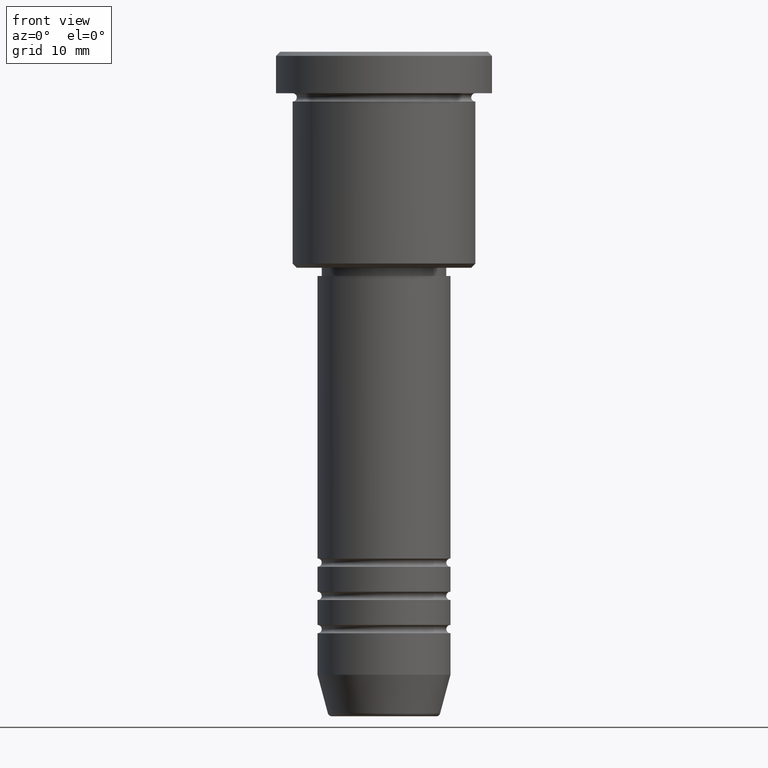
[diagram: clean part render]
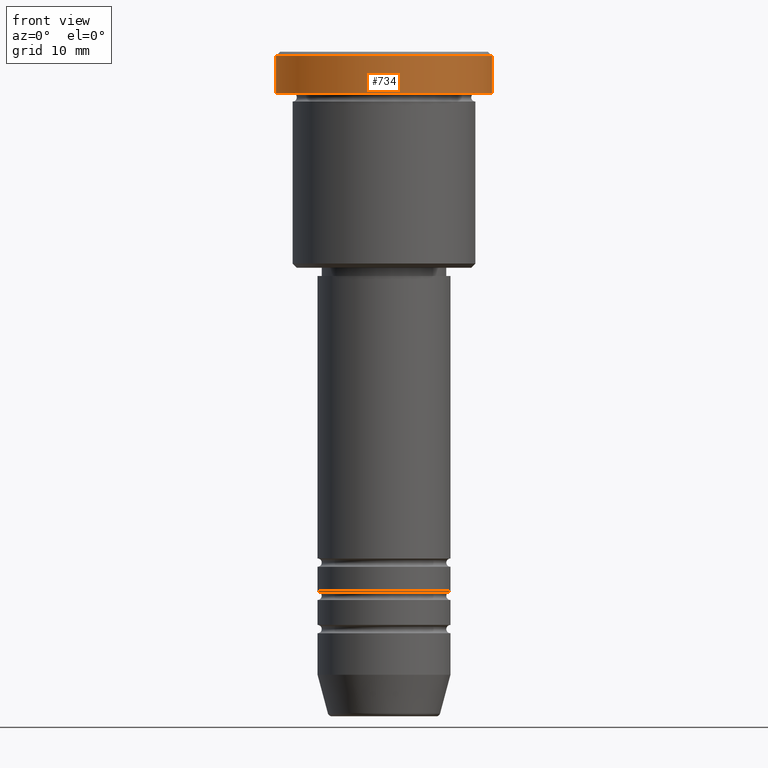
[diagram: same view with one face highlighted and labeled with its STEP entity id]
A machine part, front view. The second image highlights one B-rep face of the part: STEP entity #734.
In plain terms, the highlighted cylindrical surface (partial cylindrical patch) has radius 13 mm, axis along (-0, -0, 1).
Its self-contained STEP definition (entity closure, byte-faithful):
#24 = ORIENTED_EDGE ( 'NONE', *, *, #1110, .T. ) ;
#85 = DIRECTION ( 'NONE',  ( 1.000000000000000000, 0.000000000000000000, 0.000000000000000000 ) ) ;
#86 = VECTOR ( 'NONE', #1178, 1000.000000000000000 ) ;
#102 = AXIS2_PLACEMENT_3D ( 'NONE', #826, #358, #85 ) ;
#150 = CARTESIAN_POINT ( 'NONE',  ( -13.00000000000000000, 1.592040838891559095E-15, -5.000000000000000000 ) ) ;
#175 = EDGE_LOOP ( 'NONE', ( #380, #24, #631, #447 ) ) ;
#241 = CARTESIAN_POINT ( 'NONE',  ( 13.00000000000000000, 0.000000000000000000, -5.000000000000000000 ) ) ;
#276 = DIRECTION ( 'NONE',  ( 0.000000000000000000, 0.000000000000000000, -1.000000000000000000 ) ) ;
#300 = CYLINDRICAL_SURFACE ( 'NONE', #1001, 13.00000000000000000 ) ;
#358 = DIRECTION ( 'NONE',  ( -0.000000000000000000, -0.000000000000000000, 1.000000000000000000 ) ) ;
#380 = ORIENTED_EDGE ( 'NONE', *, *, #1094, .F. ) ;
#388 = VECTOR ( 'NONE', #732, 1000.000000000000000 ) ;
#395 = VERTEX_POINT ( 'NONE', #241 ) ;
#399 = VERTEX_POINT ( 'NONE', #150 ) ;
#411 = CARTESIAN_POINT ( 'NONE',  ( -13.00000000000000000, 1.592040838891559095E-15, -0.4999999999999796274 ) ) ;
#418 = CARTESIAN_POINT ( 'NONE',  ( 13.00000000000000000, 0.000000000000000000, -0.4999999999999796274 ) ) ;
#447 = ORIENTED_EDGE ( 'NONE', *, *, #1158, .T. ) ;
#490 = DIRECTION ( 'NONE',  ( -0.000000000000000000, -0.000000000000000000, 1.000000000000000000 ) ) ;
#526 = VERTEX_POINT ( 'NONE', #411 ) ;
#581 = VERTEX_POINT ( 'NONE', #418 ) ;
#624 = CIRCLE ( 'NONE', #102, 13.00000000000000000 ) ;
#631 = ORIENTED_EDGE ( 'NONE', *, *, #1129, .T. ) ;
#637 = CARTESIAN_POINT ( 'NONE',  ( 13.00000000000000000, 0.000000000000000000, 0.000000000000000000 ) ) ;
#649 = CARTESIAN_POINT ( 'NONE',  ( -13.00000000000000000, 1.592040838891559095E-15, 0.000000000000000000 ) ) ;
#675 = FACE_OUTER_BOUND ( 'NONE', #175, .T. ) ;
#705 = AXIS2_PLACEMENT_3D ( 'NONE', #993, #276, #1083 ) ;
#732 = DIRECTION ( 'NONE',  ( -0.000000000000000000, -0.000000000000000000, 1.000000000000000000 ) ) ;
#734 = ADVANCED_FACE ( 'NONE', ( #675 ), #300, .T. ) ;
#736 = LINE ( 'NONE', #637, #388 ) ;
#826 = CARTESIAN_POINT ( 'NONE',  ( 0.000000000000000000, 0.000000000000000000, -5.000000000000000000 ) ) ;
#929 = LINE ( 'NONE', #649, #86 ) ;
#993 = CARTESIAN_POINT ( 'NONE',  ( 0.000000000000000000, 0.000000000000000000, -0.4999999999999796274 ) ) ;
#1001 = AXIS2_PLACEMENT_3D ( 'NONE', #1120, #490, #1032 ) ;
#1032 = DIRECTION ( 'NONE',  ( 1.000000000000000000, 0.000000000000000000, 0.000000000000000000 ) ) ;
#1083 = DIRECTION ( 'NONE',  ( 1.000000000000000000, 0.000000000000000000, 0.000000000000000000 ) ) ;
#1090 = CIRCLE ( 'NONE', #705, 13.00000000000000000 ) ;
#1094 = EDGE_CURVE ( 'NONE', #399, #526, #929, .T. ) ;
#1110 = EDGE_CURVE ( 'NONE', #399, #395, #624, .T. ) ;
#1120 = CARTESIAN_POINT ( 'NONE',  ( 0.000000000000000000, 0.000000000000000000, 0.000000000000000000 ) ) ;
#1129 = EDGE_CURVE ( 'NONE', #395, #581, #736, .T. ) ;
#1158 = EDGE_CURVE ( 'NONE', #581, #526, #1090, .T. ) ;
#1178 = DIRECTION ( 'NONE',  ( -0.000000000000000000, -0.000000000000000000, 1.000000000000000000 ) ) ;